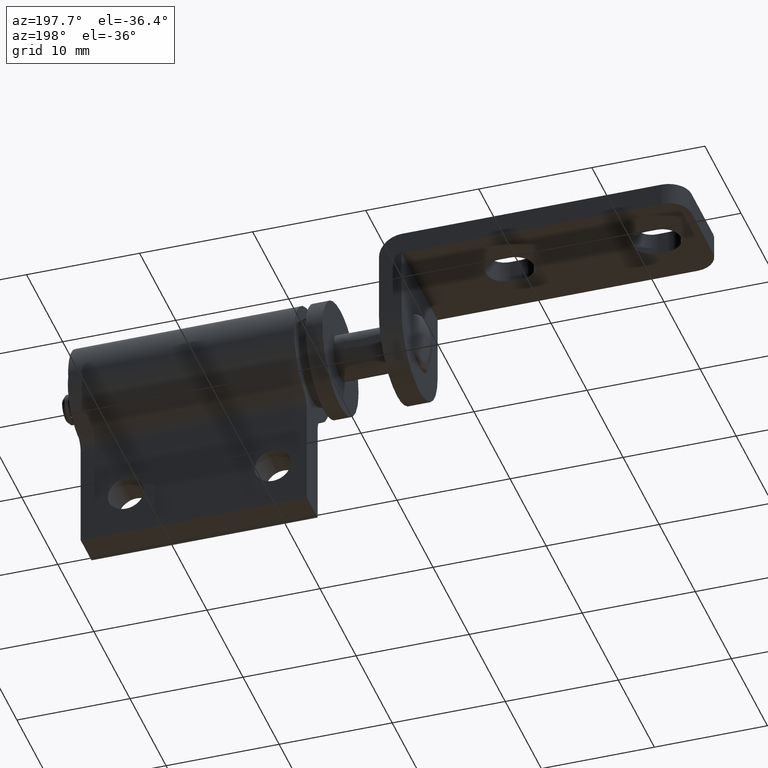
[diagram: clean part render]
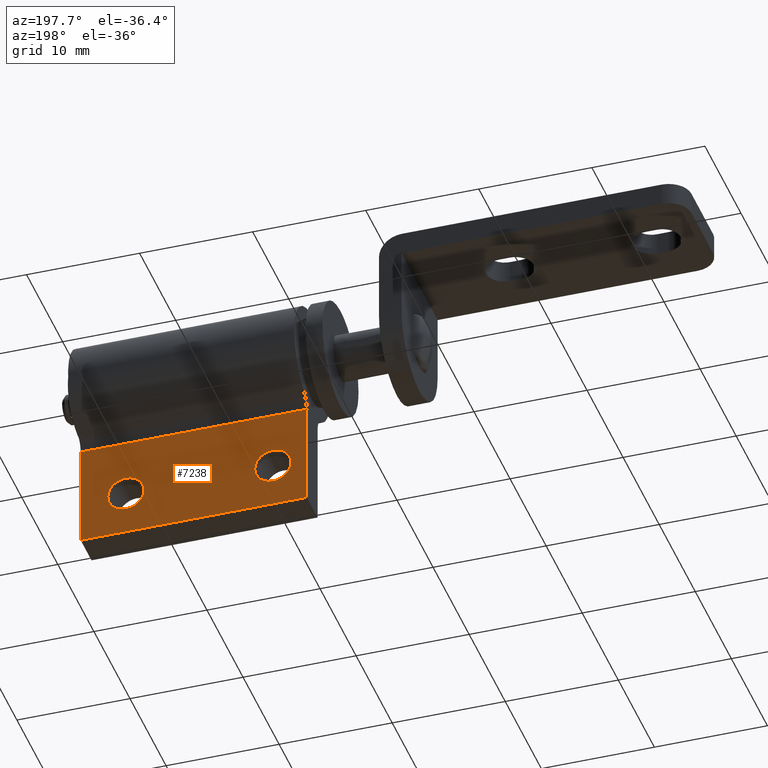
[diagram: same view with one face highlighted and labeled with its STEP entity id]
A machine part, auxiliary view. The second image highlights one B-rep face of the part: STEP entity #7238.
In plain terms, the highlighted face is a freeform B-spline surface patch.
Its self-contained STEP definition (entity closure, byte-faithful):
#6533=CARTESIAN_POINT('',(11.601367233162581,1.499999999999946,-12.160598802503090));
#6534=VERTEX_POINT('',#6533);
#6540=CARTESIAN_POINT('',(10.500000000000000,1.499999999999946,-12.600000000000000));
#6541=VERTEX_POINT('',#6540);
#6542=CARTESIAN_POINT('',(10.500000000000000,1.499999999999946,-12.600000000000000));
#6543=CARTESIAN_POINT('',(10.639195683097000,1.499999999999948,-12.600041526228591));
#6544=CARTESIAN_POINT('',(10.854278065702269,1.499999999999943,-12.571738488611230));
#6545=CARTESIAN_POINT('',(11.238056636214370,1.499999999999949,-12.439390122307961));
#6546=CARTESIAN_POINT('',(11.463778646965700,1.499999999999938,-12.291389127977590));
#6547=CARTESIAN_POINT('',(11.601367233162581,1.499999999999946,-12.160598802503090));
#6548=B_SPLINE_CURVE_WITH_KNOTS('',3,(#6542,#6543,#6544,#6545,#6546,#6547),.UNSPECIFIED.,.F.,.U.,(4,1,1,4),(8.056137E-009,0.417579941695138,0.645350440030051,1.214777636294339),.UNSPECIFIED.);
#6549=EDGE_CURVE('',#6541,#6534,#6548,.T.);
#6551=CARTESIAN_POINT('',(8.900000000000199,1.499999999999946,-11.000000797773540));
#6552=VERTEX_POINT('',#6551);
#6553=CARTESIAN_POINT('',(8.900000000000199,1.499999999999946,-11.000000797773540));
#6554=CARTESIAN_POINT('',(8.899902234805325,1.499999999999944,-11.170182419186620));
#6555=CARTESIAN_POINT('',(8.952716246053070,1.499999999999949,-11.497371347526260));
#6556=CARTESIAN_POINT('',(9.149002882244465,1.499999999999944,-11.887429623062721));
#6557=CARTESIAN_POINT('',(9.389637502396370,1.499999999999948,-12.166247312802749));
#6558=CARTESIAN_POINT('',(9.690294193135307,1.499999999999945,-12.401025180277189));
#6559=CARTESIAN_POINT('',(10.068016695884340,1.499999999999947,-12.562906621500890));
#6560=CARTESIAN_POINT('',(10.369104049842360,1.499999999999940,-12.600018041199400));
#6561=CARTESIAN_POINT('',(10.500000000000000,1.499999999999946,-12.600000000000000));
#6562=B_SPLINE_CURVE_WITH_KNOTS('',3,(#6553,#6554,#6555,#6556,#6557,#6558,#6559,#6560,#6561),.UNSPECIFIED.,.F.,.U.,(4,1,1,1,1,1,4),(0.000000031769790,0.510520892429509,0.981776141078970,1.295937275059831,1.610103488460359,2.120630145041391,2.513336741285647),.UNSPECIFIED.);
#6563=EDGE_CURVE('',#6552,#6541,#6562,.T.);
#6565=CARTESIAN_POINT('',(9.398632766837416,1.499999999999946,-9.839401197496919));
#6566=VERTEX_POINT('',#6565);
#6567=CARTESIAN_POINT('',(9.398632766837416,1.499999999999946,-9.839401197496919));
#6568=CARTESIAN_POINT('',(9.315225812124782,1.499999999999944,-9.918533613148073));
#6569=CARTESIAN_POINT('',(9.147944203177032,1.499999999999949,-10.115613506057530));
#6570=CARTESIAN_POINT('',(8.952927380059206,1.499999999999941,-10.506333124855580));
#6571=CARTESIAN_POINT('',(8.899903200566163,1.499999999999953,-10.824150404029499));
#6572=CARTESIAN_POINT('',(8.900000000000199,1.499999999999946,-11.000000797773540));
#6573=B_SPLINE_CURVE_WITH_KNOTS('',3,(#6567,#6568,#6569,#6570,#6571,#6572),.UNSPECIFIED.,.F.,.U.,(4,1,1,4),(0.000000019087240,0.344923326459223,0.771000308587563,1.298534312572062),.UNSPECIFIED.);
#6574=EDGE_CURVE('',#6566,#6552,#6573,.T.);
#6614=CARTESIAN_POINT('',(10.500000000000000,1.499999999999946,-9.399999999999999));
#6615=VERTEX_POINT('',#6614);
#6616=CARTESIAN_POINT('',(10.500000000000000,1.499999999999946,-9.399999999999999));
#6617=CARTESIAN_POINT('',(10.386114961551190,1.499999999999946,-9.399979945707806));
#6618=CARTESIAN_POINT('',(10.171016258808679,1.499999999999949,-9.423071567459017));
#6619=CARTESIAN_POINT('',(9.783442059678592,1.499999999999943,-9.546503915420740));
#6620=CARTESIAN_POINT('',(9.536220404954710,1.499999999999951,-9.708613153384107));
#6621=CARTESIAN_POINT('',(9.398632766837416,1.499999999999946,-9.839401197496919));
#6622=B_SPLINE_CURVE_WITH_KNOTS('',3,(#6616,#6617,#6618,#6619,#6620,#6621),.UNSPECIFIED.,.F.,.U.,(4,1,1,4),(8.055278E-009,0.341656231845439,0.645350440029794,1.214777636294345),.UNSPECIFIED.);
#6623=EDGE_CURVE('',#6615,#6566,#6622,.T.);
#6625=CARTESIAN_POINT('',(12.099999999999801,1.499999999999946,-10.999999202226480));
#6626=VERTEX_POINT('',#6625);
#6627=CARTESIAN_POINT('',(12.099999999999801,1.499999999999946,-10.999999202226480));
#6628=CARTESIAN_POINT('',(12.100032923410261,1.499999999999948,-10.869096498489720));
#6629=CARTESIAN_POINT('',(12.072526415152440,1.499999999999943,-10.646589545228920));
#6630=CARTESIAN_POINT('',(11.948621289845439,1.499999999999947,-10.286266198729450));
#6631=CARTESIAN_POINT('',(11.757491788534949,1.499999999999947,-9.984450052620929));
#6632=CARTESIAN_POINT('',(11.452628847256650,1.499999999999943,-9.694198863606330));
#6633=CARTESIAN_POINT('',(11.049697048998731,1.499999999999951,-9.465886924153708));
#6634=CARTESIAN_POINT('',(10.696364591100210,1.499999999999944,-9.399839422692198));
#6635=CARTESIAN_POINT('',(10.500000000000000,1.499999999999946,-9.399999999999999));
#6636=B_SPLINE_CURVE_WITH_KNOTS('',3,(#6627,#6628,#6629,#6630,#6631,#6632,#6633,#6634,#6635),.UNSPECIFIED.,.F.,.U.,(4,1,1,1,1,1,4),(0.000000031769876,0.392706627641286,0.667605172198716,1.138859845500599,1.453018276518941,1.924273526902980,2.513336741285667),.UNSPECIFIED.);
#6637=EDGE_CURVE('',#6626,#6615,#6636,.T.);
#6639=CARTESIAN_POINT('',(11.601367233162581,1.499999999999946,-12.160598802503090));
#6640=CARTESIAN_POINT('',(11.748700891915419,1.499999999999949,-12.021047948189290));
#6641=CARTESIAN_POINT('',(11.916803870270581,1.499999999999943,-11.785765222073939));
#6642=CARTESIAN_POINT('',(12.067671991131670,1.499999999999950,-11.378701919694050));
#6643=CARTESIAN_POINT('',(12.100056299065910,1.499999999999941,-11.148797369908740));
#6644=CARTESIAN_POINT('',(12.099999999999801,1.499999999999946,-10.999999202226480));
#6645=B_SPLINE_CURVE_WITH_KNOTS('',3,(#6639,#6640,#6641,#6642,#6643,#6644),.UNSPECIFIED.,.F.,.U.,(4,1,1,4),(0.000000019087761,0.608690446906481,0.852159472133798,1.298534312572053),.UNSPECIFIED.);
#6646=EDGE_CURVE('',#6534,#6626,#6645,.T.);
#6732=CARTESIAN_POINT('',(24.601367233162591,1.499999999999946,-12.160598802503090));
#6733=VERTEX_POINT('',#6732);
#6739=CARTESIAN_POINT('',(23.500000000000000,1.499999999999946,-12.600000000000000));
#6740=VERTEX_POINT('',#6739);
#6741=CARTESIAN_POINT('',(23.500000000000000,1.499999999999946,-12.600000000000000));
#6742=CARTESIAN_POINT('',(23.689831531292221,1.499999999999947,-12.600159373408861));
#6743=CARTESIAN_POINT('',(23.980747922812281,1.499999999999947,-12.547575999112400));
#6744=CARTESIAN_POINT('',(24.346849199756509,1.499999999999947,-12.370320197799620));
#6745=CARTESIAN_POINT('',(24.518772026244299,1.499999999999942,-12.239006855764719));
#6746=CARTESIAN_POINT('',(24.601367233162591,1.499999999999946,-12.160598802503090));
#6747=B_SPLINE_CURVE_WITH_KNOTS('',3,(#6741,#6742,#6743,#6744,#6745,#6746),.UNSPECIFIED.,.F.,.U.,(4,1,1,4),(8.055851E-009,0.569427204345079,0.873121412507570,1.214777636294334),.UNSPECIFIED.);
#6748=EDGE_CURVE('',#6740,#6733,#6747,.T.);
#6750=CARTESIAN_POINT('',(21.900000000000201,1.499999999999946,-11.000000797773540));
#6751=VERTEX_POINT('',#6750);
#6752=CARTESIAN_POINT('',(21.900000000000201,1.499999999999946,-11.000000797773540));
#6753=CARTESIAN_POINT('',(21.899948051797729,1.499999999999946,-11.143997226995420));
#6754=CARTESIAN_POINT('',(21.930254929930928,1.499999999999946,-11.366494689190381));
#6755=CARTESIAN_POINT('',(22.040807963506762,1.499999999999946,-11.675454980587340));
#6756=CARTESIAN_POINT('',(22.183426338087909,1.499999999999945,-11.927235173859570));
#6757=CARTESIAN_POINT('',(22.389622970811999,1.499999999999950,-12.166267850917190));
#6758=CARTESIAN_POINT('',(22.638484512316381,1.499999999999946,-12.360467416911661));
#6759=CARTESIAN_POINT('',(23.002683758530939,1.499999999999943,-12.543878641565300));
#6760=CARTESIAN_POINT('',(23.303624185240711,1.499999999999953,-12.600151364204001));
#6761=CARTESIAN_POINT('',(23.500000000000000,1.499999999999946,-12.600000000000000));
#6762=B_SPLINE_CURVE_WITH_KNOTS('',3,(#6752,#6753,#6754,#6755,#6756,#6757,#6758,#6759,#6760,#6761),.UNSPECIFIED.,.F.,.U.,(4,1,1,1,1,1,1,4),(0.000000031766795,0.431978108773586,0.667605172196816,0.981776141077521,1.295937275058842,1.610103488459708,1.924273526902681,2.513336741285672),.UNSPECIFIED.);
#6763=EDGE_CURVE('',#6751,#6740,#6762,.T.);
#6765=CARTESIAN_POINT('',(22.398632766837419,1.499999999999946,-9.839401197496919));
#6766=VERTEX_POINT('',#6765);
#6767=CARTESIAN_POINT('',(22.398632766837419,1.499999999999946,-9.839401197496919));
#6768=CARTESIAN_POINT('',(22.251303766040021,1.499999999999948,-9.978941419757414));
#6769=CARTESIAN_POINT('',(22.047134607946202,1.499999999999942,-10.264667078689520));
#6770=CARTESIAN_POINT('',(21.918969633146780,1.499999999999952,-10.682128917481080));
#6771=CARTESIAN_POINT('',(21.900000202507002,1.499999999999940,-10.912081520755329));
#6772=CARTESIAN_POINT('',(21.900000000000201,1.499999999999946,-11.000000797773540));
#6773=B_SPLINE_CURVE_WITH_KNOTS('',3,(#6767,#6768,#6769,#6770,#6771,#6772),.UNSPECIFIED.,.F.,.U.,(4,1,1,4),(0.000000019086379,0.608690446905620,1.034770368796787,1.298534312572079),.UNSPECIFIED.);
#6774=EDGE_CURVE('',#6766,#6751,#6773,.T.);
#6814=CARTESIAN_POINT('',(23.500000000000000,1.499999999999946,-9.399999999999999));
#6815=VERTEX_POINT('',#6814);
#6816=CARTESIAN_POINT('',(23.500000000000000,1.499999999999946,-9.399999999999999));
#6817=CARTESIAN_POINT('',(23.360809453895438,1.499999999999949,-9.399969769447498));
#6818=CARTESIAN_POINT('',(23.069779342221889,1.499999999999942,-9.438185781055809));
#6819=CARTESIAN_POINT('',(22.693576706940600,1.499999999999949,-9.598717277378434));
#6820=CARTESIAN_POINT('',(22.481233139789520,1.499999999999943,-9.761005880933777));
#6821=CARTESIAN_POINT('',(22.398632766837419,1.499999999999946,-9.839401197496919));
#6822=B_SPLINE_CURVE_WITH_KNOTS('',3,(#6816,#6817,#6818,#6819,#6820,#6821),.UNSPECIFIED.,.F.,.U.,(4,1,1,4),(8.055813E-009,0.417579941695021,0.873121412507634,1.214777636294335),.UNSPECIFIED.);
#6823=EDGE_CURVE('',#6815,#6766,#6822,.T.);
#6825=CARTESIAN_POINT('',(25.099999999999799,1.499999999999946,-10.999999202226480));
#6826=VERTEX_POINT('',#6825);
#6827=CARTESIAN_POINT('',(25.099999999999799,1.499999999999946,-10.999999202226480));
#6828=CARTESIAN_POINT('',(25.100032526237179,1.499999999999949,-10.869096079696250));
#6829=CARTESIAN_POINT('',(25.072531578720898,1.499999999999945,-10.646586876021351));
#6830=CARTESIAN_POINT('',(24.965679028913438,1.499999999999945,-10.335987994401330));
#6831=CARTESIAN_POINT('',(24.816572453517999,1.499999999999947,-10.072765787331850));
#6832=CARTESIAN_POINT('',(24.610377474079229,1.499999999999949,-9.833731763674825));
#6833=CARTESIAN_POINT('',(24.361515350078921,1.499999999999942,-9.639532717900135));
#6834=CARTESIAN_POINT('',(23.997316292825030,1.499999999999954,-9.456121280587727));
#6835=CARTESIAN_POINT('',(23.696375930495520,1.499999999999937,-9.399848874670694));
#6836=CARTESIAN_POINT('',(23.500000000000000,1.499999999999946,-9.399999999999999));
#6837=B_SPLINE_CURVE_WITH_KNOTS('',3,(#6827,#6828,#6829,#6830,#6831,#6832,#6833,#6834,#6835,#6836),.UNSPECIFIED.,.F.,.U.,(4,1,1,1,1,1,1,4),(0.000000031767413,0.392706627639302,0.667605172197120,0.981776141077692,1.295937275058889,1.610103488459670,1.924273526902726,2.513336741285675),.UNSPECIFIED.);
#6838=EDGE_CURVE('',#6826,#6815,#6837,.T.);
#6840=CARTESIAN_POINT('',(24.601367233162591,1.499999999999946,-12.160598802503090));
#6841=CARTESIAN_POINT('',(24.753642057074480,1.499999999999945,-12.016419364234819));
#6842=CARTESIAN_POINT('',(24.940269164351189,1.499999999999949,-11.751573456850171));
#6843=CARTESIAN_POINT('',(25.075830886094899,1.499999999999943,-11.338141982448040));
#6844=CARTESIAN_POINT('',(25.100020300955141,1.499999999999949,-11.114974560476281));
#6845=CARTESIAN_POINT('',(25.099999999999799,1.499999999999946,-10.999999202226480));
#6846=B_SPLINE_CURVE_WITH_KNOTS('',3,(#6840,#6841,#6842,#6843,#6844,#6845),.UNSPECIFIED.,.F.,.U.,(4,1,1,4),(0.000000019088219,0.628988301107007,0.953611005200263,1.298534312572046),.UNSPECIFIED.);
#6847=EDGE_CURVE('',#6733,#6826,#6846,.T.);
#6882=CARTESIAN_POINT('',(27.500000000000000,1.499999999999956,-15.0));
#6883=VERTEX_POINT('',#6882);
#6884=CARTESIAN_POINT('',(27.500000000000000,1.499999999999956,-5.766281297335500));
#6885=VERTEX_POINT('',#6884);
#6886=CARTESIAN_POINT('',(27.500000000000000,1.499999999999956,-15.0));
#6887=CARTESIAN_POINT('',(27.500000000000000,1.499999999999956,-5.766281297335500));
#6888=QUASI_UNIFORM_CURVE('',1,(#6886,#6887),.UNSPECIFIED.,.F.,.U.);
#6889=EDGE_CURVE('',#6883,#6885,#6888,.T.);
#6994=CARTESIAN_POINT('',(7.500000000000000,1.499999999999956,-15.0));
#6995=VERTEX_POINT('',#6994);
#7001=CARTESIAN_POINT('',(27.500000000000000,1.499999999999956,-15.0));
#7002=CARTESIAN_POINT('',(7.500000000000000,1.499999999999956,-15.0));
#7003=QUASI_UNIFORM_CURVE('',1,(#7001,#7002),.UNSPECIFIED.,.F.,.U.);
#7004=EDGE_CURVE('',#6883,#6995,#7003,.T.);
#7185=CARTESIAN_POINT('',(7.500000000000000,1.499999999999956,-5.766281297335500));
#7186=VERTEX_POINT('',#7185);
#7199=CARTESIAN_POINT('',(27.500000000000000,1.499999999999956,-5.766281297335500));
#7200=CARTESIAN_POINT('',(7.500000000000000,1.499999999999956,-5.766281297335500));
#7201=QUASI_UNIFORM_CURVE('',1,(#7199,#7200),.UNSPECIFIED.,.F.,.U.);
#7202=EDGE_CURVE('',#6885,#7186,#7201,.T.);
#7207=CARTESIAN_POINT('',(6.501000038763880,1.499999999999956,-5.305057066034146));
#7208=CARTESIAN_POINT('',(6.501000038763880,1.499999999999956,-15.461224478968990));
#7209=CARTESIAN_POINT('',(28.499000497677919,1.499999999999956,-5.305057066034146));
#7210=CARTESIAN_POINT('',(28.499000497677919,1.499999999999956,-15.461224478968990));
#7211=B_SPLINE_SURFACE_WITH_KNOTS('',1,1,((#7207,#7209),(#7208,#7210)),.UNSPECIFIED.,.F.,.F.,.U.,(2,2),(2,2),(0.0,10.156167412934851),(0.0,21.998000458914039),.UNSPECIFIED.);
#7212=CARTESIAN_POINT('',(7.500000000000000,1.499999999999956,-15.0));
#7213=CARTESIAN_POINT('',(7.500000000000000,1.499999999999956,-5.766281297335500));
#7214=QUASI_UNIFORM_CURVE('',1,(#7212,#7213),.UNSPECIFIED.,.F.,.U.);
#7215=EDGE_CURVE('',#6995,#7186,#7214,.T.);
#7216=ORIENTED_EDGE('',*,*,#7215,.T.);
#7217=ORIENTED_EDGE('',*,*,#7202,.F.);
#7218=ORIENTED_EDGE('',*,*,#6889,.F.);
#7219=ORIENTED_EDGE('',*,*,#7004,.T.);
#7220=EDGE_LOOP('',(#7216,#7217,#7218,#7219));
#7221=FACE_OUTER_BOUND('',#7220,.T.);
#7222=ORIENTED_EDGE('',*,*,#6763,.T.);
#7223=ORIENTED_EDGE('',*,*,#6748,.T.);
#7224=ORIENTED_EDGE('',*,*,#6847,.T.);
#7225=ORIENTED_EDGE('',*,*,#6838,.T.);
#7226=ORIENTED_EDGE('',*,*,#6823,.T.);
#7227=ORIENTED_EDGE('',*,*,#6774,.T.);
#7228=EDGE_LOOP('',(#7222,#7223,#7224,#7225,#7226,#7227));
#7229=FACE_BOUND('',#7228,.T.);
#7230=ORIENTED_EDGE('',*,*,#6563,.T.);
#7231=ORIENTED_EDGE('',*,*,#6549,.T.);
#7232=ORIENTED_EDGE('',*,*,#6646,.T.);
#7233=ORIENTED_EDGE('',*,*,#6637,.T.);
#7234=ORIENTED_EDGE('',*,*,#6623,.T.);
#7235=ORIENTED_EDGE('',*,*,#6574,.T.);
#7236=EDGE_LOOP('',(#7230,#7231,#7232,#7233,#7234,#7235));
#7237=FACE_BOUND('',#7236,.T.);
#7238=ADVANCED_FACE('',(#7221,#7229,#7237),#7211,.F.);